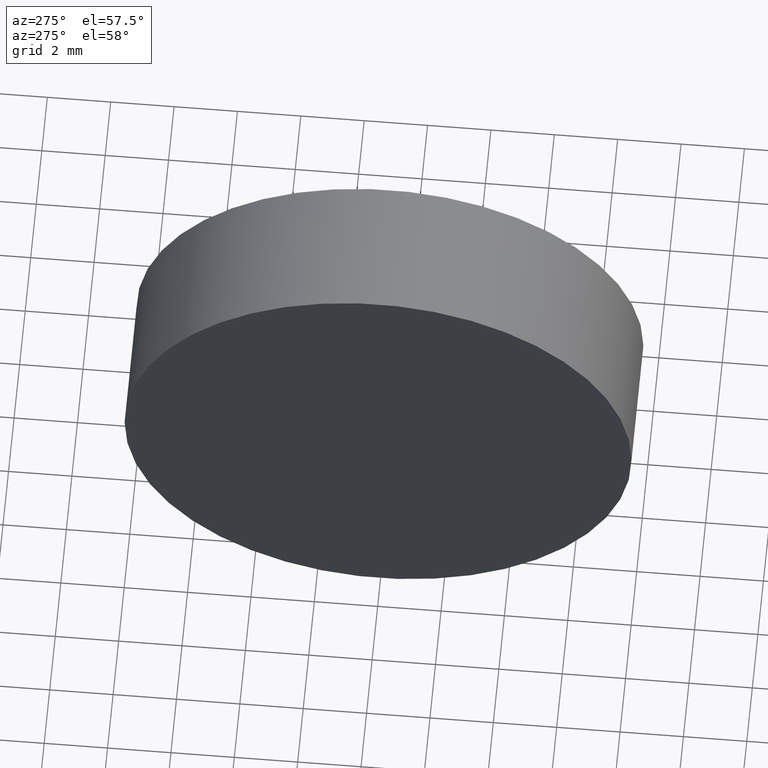
[diagram: clean part render]
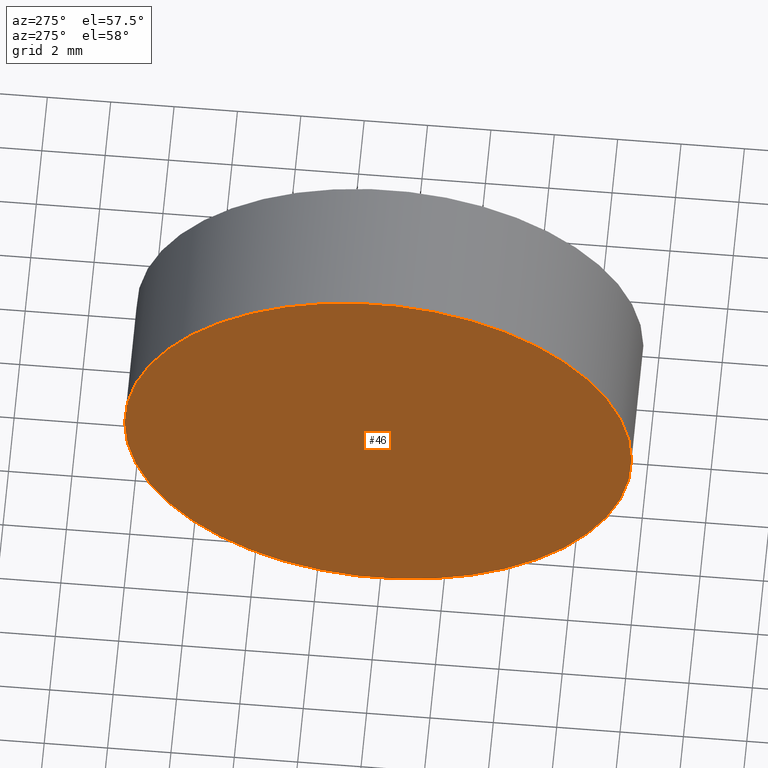
[diagram: same view with one face highlighted and labeled with its STEP entity id]
A machine part, auxiliary view. The second image highlights one B-rep face of the part: STEP entity #46.
In plain terms, the highlighted planar face has unit normal (1, -0, 0).
Its self-contained STEP definition (entity closure, byte-faithful):
#7 = EDGE_LOOP ( 'NONE', ( #63, #37 ) ) ;
#8 = DIRECTION ( 'NONE',  ( 0.0000000000000000000, -1.000000000000000000, 0.0000000000000000000 ) ) ;
#9 = DIRECTION ( 'NONE',  ( 1.000000000000000000, -4.058245434298766700E-016, 0.0000000000000000000 ) ) ;
#14 = VERTEX_POINT ( 'NONE', #141 ) ;
#21 = VERTEX_POINT ( 'NONE', #52 ) ;
#30 = CIRCLE ( 'NONE', #166, 8.000000000000000000 ) ;
#37 = ORIENTED_EDGE ( 'NONE', *, *, #79, .T. ) ;
#38 = DIRECTION ( 'NONE',  ( 4.058245434298766700E-016, 1.000000000000000000, 0.0000000000000000000 ) ) ;
#41 = CIRCLE ( 'NONE', #136, 8.000000000000000000 ) ;
#46 = ADVANCED_FACE ( 'NONE', ( #128 ), #115, .F. ) ;
#52 = CARTESIAN_POINT ( 'NONE',  ( 44.85442262622448300, 18.06225218280608400, 0.0000000000000000000 ) ) ;
#53 = AXIS2_PLACEMENT_3D ( 'NONE', #163, #9, #38 ) ;
#63 = ORIENTED_EDGE ( 'NONE', *, *, #91, .T. ) ;
#78 = DIRECTION ( 'NONE',  ( -1.000000000000000000, 4.058245434298766700E-016, -0.0000000000000000000 ) ) ;
#79 = EDGE_CURVE ( 'NONE', #14, #21, #41, .T. ) ;
#86 = CARTESIAN_POINT ( 'NONE',  ( 44.85442262622448300, 26.06225218280608400, 0.0000000000000000000 ) ) ;
#87 = DIRECTION ( 'NONE',  ( 0.0000000000000000000, -1.000000000000000000, 0.0000000000000000000 ) ) ;
#91 = EDGE_CURVE ( 'NONE', #21, #14, #30, .T. ) ;
#113 = DIRECTION ( 'NONE',  ( -1.000000000000000000, 4.058245434298766700E-016, -0.0000000000000000000 ) ) ;
#115 = PLANE ( 'NONE',  #53 ) ;
#122 = CARTESIAN_POINT ( 'NONE',  ( 44.85442262622448300, 26.06225218280608400, 0.0000000000000000000 ) ) ;
#128 = FACE_OUTER_BOUND ( 'NONE', #7, .T. ) ;
#136 = AXIS2_PLACEMENT_3D ( 'NONE', #86, #78, #8 ) ;
#141 = CARTESIAN_POINT ( 'NONE',  ( 44.85442262622448300, 34.06225218280608400, 9.797174393178827600E-016 ) ) ;
#163 = CARTESIAN_POINT ( 'NONE',  ( 44.85442262622448300, 26.06225218280608400, 0.0000000000000000000 ) ) ;
#166 = AXIS2_PLACEMENT_3D ( 'NONE', #122, #113, #87 ) ;